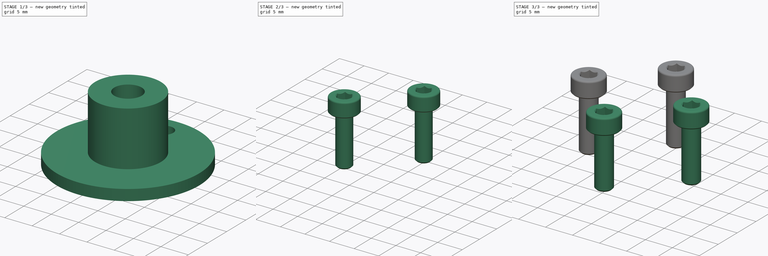
[diagram: build sequence overview — one tinted view per stage of 3, left to right]
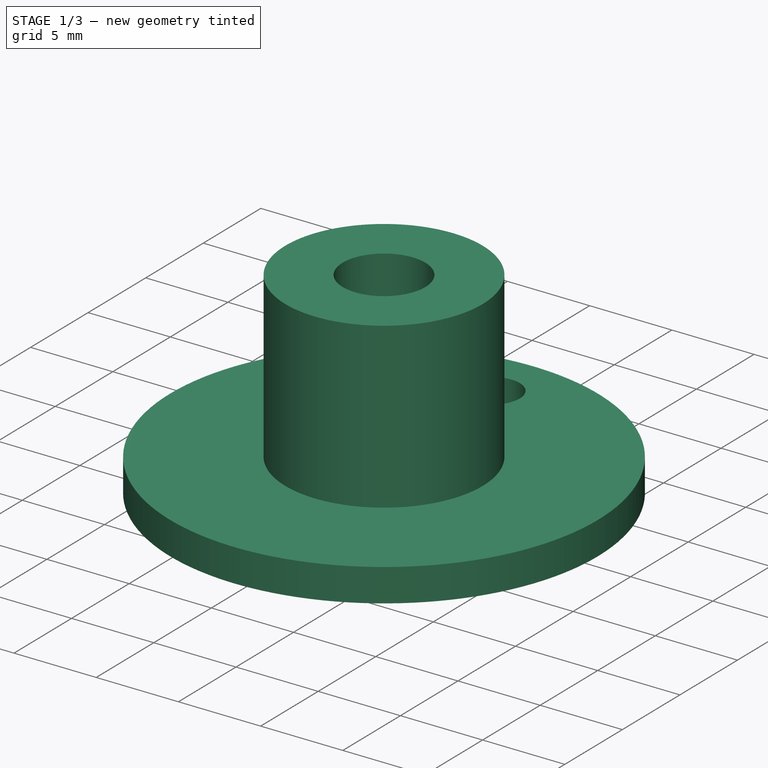
[diagram: stage 1 of 3 — iso view after this stage's code; geometry added in this stage tinted green]
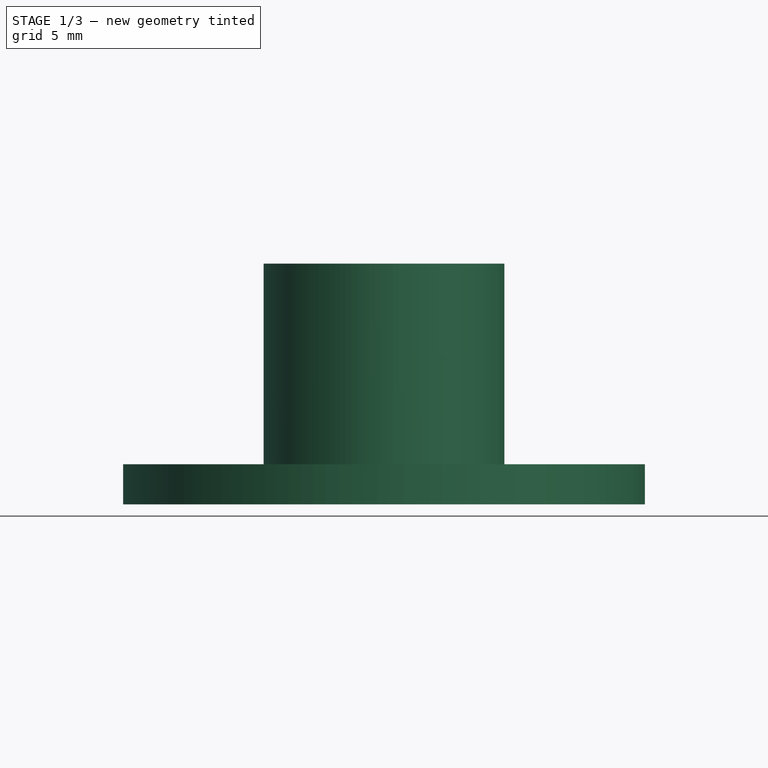
[diagram: stage 1 of 3 — front view after this stage's code; geometry added in this stage tinted green]
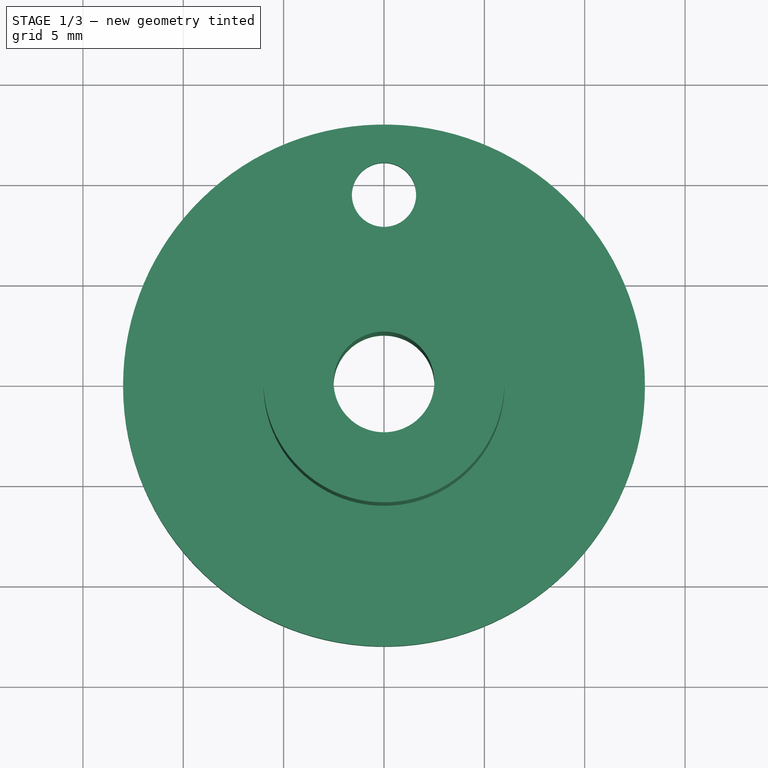
[diagram: stage 1 of 3 — top view after this stage's code; geometry added in this stage tinted green]
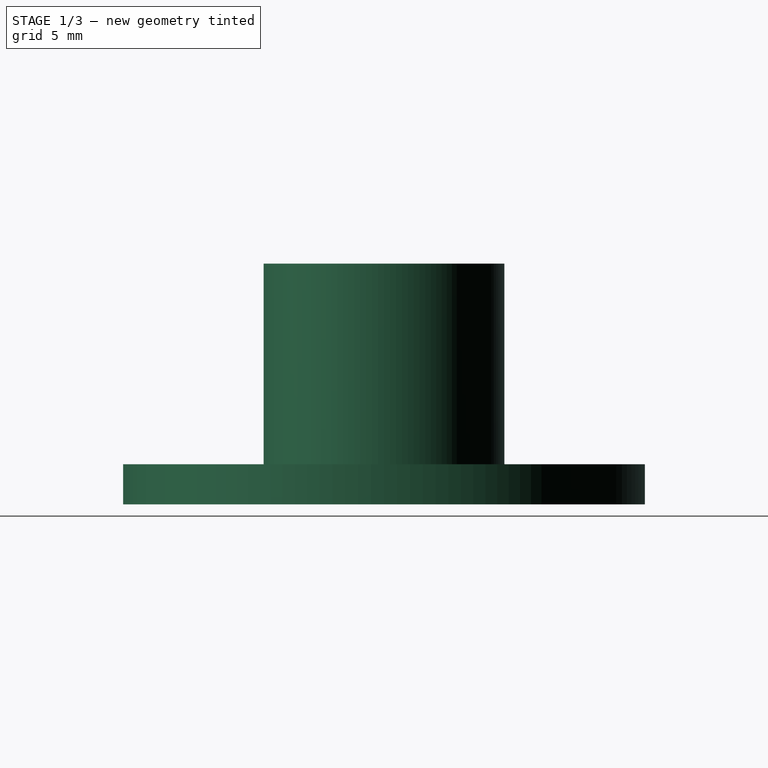
[diagram: stage 1 of 3 — right view after this stage's code; geometry added in this stage tinted green]
FCSTD DOCUMENT  (FreeCAD 0.20R29177 +426 (Git))
Label: FlangeHub5mm
License: All rights reserved
LicenseURL: http://en.wikipedia.org/wiki/All_rights_reserved
objects: Part::FeaturePython×4, App::DocumentObjectGroup×3, Sketcher::SketchObject×2, PartDesign::Revolution×1, PartDesign::Pocket×1, PartDesign::PolarPattern×1, PartDesign::Body×1, PartDesign::CoordinateSystem×1, App::FeaturePython×1, App::Part×1
note: 13 computed .brp shape members not serialized (recipe doc carries the construction recipe); baked Part::Feature solids carry a one-line shape summary decoded from their .brp

FEATURE [Sketcher::SketchObject] Sketch
  FullyConstrained = true
  MapMode = 5
  Placement = pos=(0,0,0) rot=(1,0,0;1.5708rad)
  Support = -> [XZ_Plane]
  sketch-geometry (6):
    g0: LineSegment StartX=2.51 StartY=12 StartZ=0 EndX=2.51 EndY=0 EndZ=0
    g1: LineSegment StartX=2.51 StartY=0 StartZ=0 EndX=13 EndY=0 EndZ=0
    g2: LineSegment StartX=13 StartY=0 StartZ=0 EndX=13 EndY=2 EndZ=0
    g3: LineSegment StartX=13 StartY=2 StartZ=0 EndX=6 EndY=2 EndZ=0
    g4: LineSegment StartX=6 StartY=2 StartZ=0 EndX=6 EndY=12 EndZ=0
    g5: LineSegment StartX=6 StartY=12 StartZ=0 EndX=2.51 EndY=12 EndZ=0
  constraints (18):
    c: Vertical(g0)
    c: Coincident(g1,g0)
    c: PointOnObject(g1,g-1)
    c: Horizontal(g1)
    c: Coincident(g2,g1)
    c: Coincident(g3,g2)
    c: Horizontal(g3)
    c: Coincident(g4,g3)
    c: Vertical(g4)
    c: Coincident(g5,g4)
    c: Coincident(g5,g0)
    c: Horizontal(g5)
    c: Vertical(g2)
    c: DistanceY(g2,g2) = 2
    c: DistanceX(g-1,g1) = 13
    c: DistanceX(g-1,g0) = 2.51
    c: DistanceY(g4,g4) = 10
    c: DistanceX(g-1,g4) = 6
FEATURE [PartDesign::Revolution] Revolution
  Angle = 360
  Axis = (0,-2e-16,1)
  Base = (0,0,0)
  Placement = pos=(0,0,0) rot=(1,0,0;1.5708rad)
  Profile = -> Sketch
  ReferenceAxis = -> Sketch [V_Axis]
  Reversed = true
FEATURE [Sketcher::SketchObject] Sketch001
  FullyConstrained = true
  MapMode = 5
  Support = -> [XY_Plane]
  sketch-geometry (1):
    g0: Circle CenterX=0 CenterY=9.5 CenterZ=0 NormalX=0 NormalY=0 NormalZ=1 AngleXU=0 Radius=1.6
  constraints (3):
    c: PointOnObject(g0,g-2)
    c: Diameter(g0) = 3.2
    c: DistanceY(g-1,g0) = 9.5
FEATURE [PartDesign::Pocket] Pocket  label="MountHole"
  BaseFeature = -> Revolution
  Direction = (0,0,-1)
  Length = 5
  Length2 = 5
  Placement = pos=(0,0,0) rot=(1,0,0;1.5708rad)
  Profile = -> Sketch001
  ReferenceAxis = -> Sketch001 [N_Axis]
  Reversed = true
  Type = 1
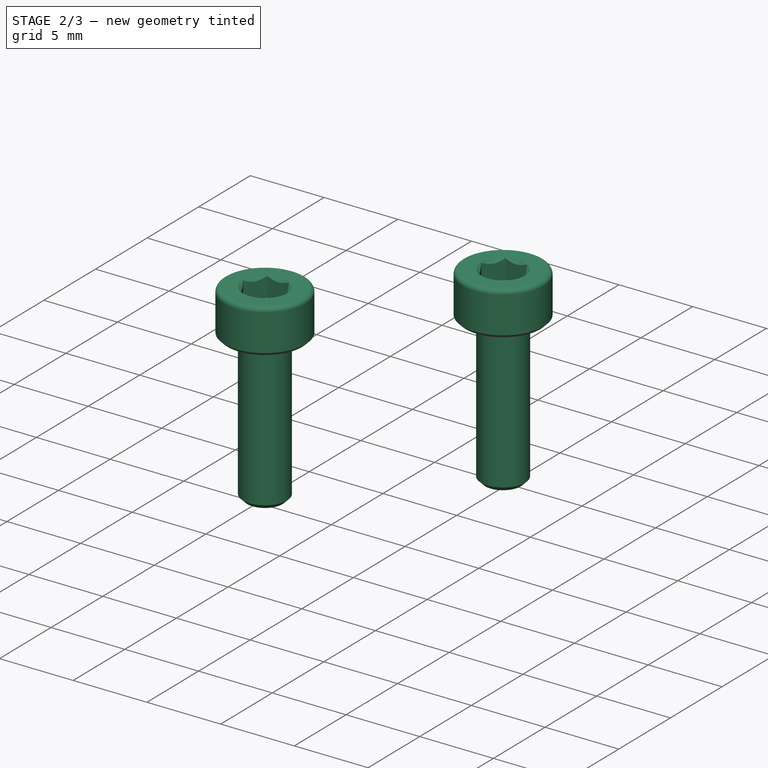
[diagram: stage 2 of 3 — iso view after this stage's code; geometry added in this stage tinted green]
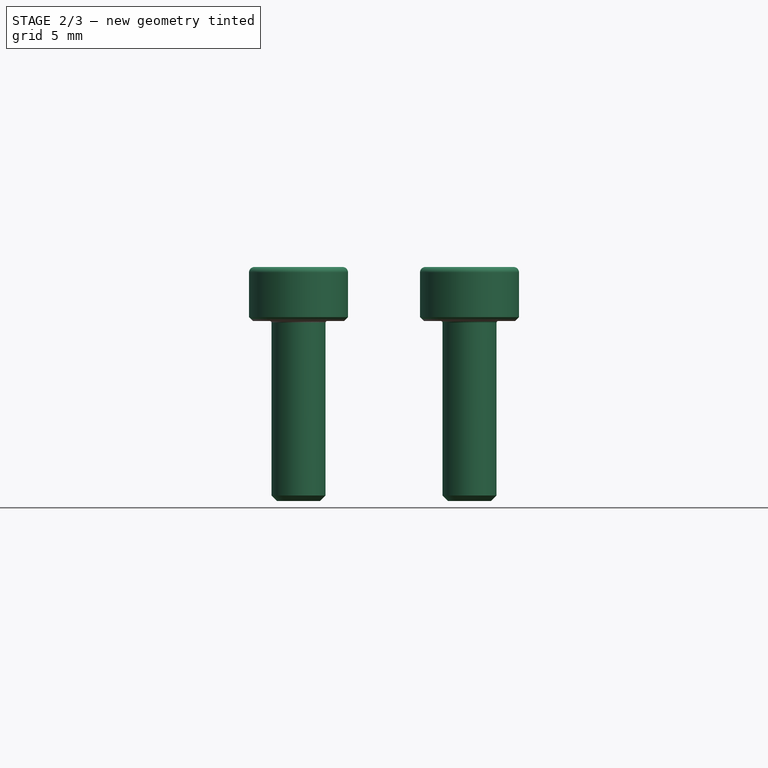
[diagram: stage 2 of 3 — front view after this stage's code; geometry added in this stage tinted green]
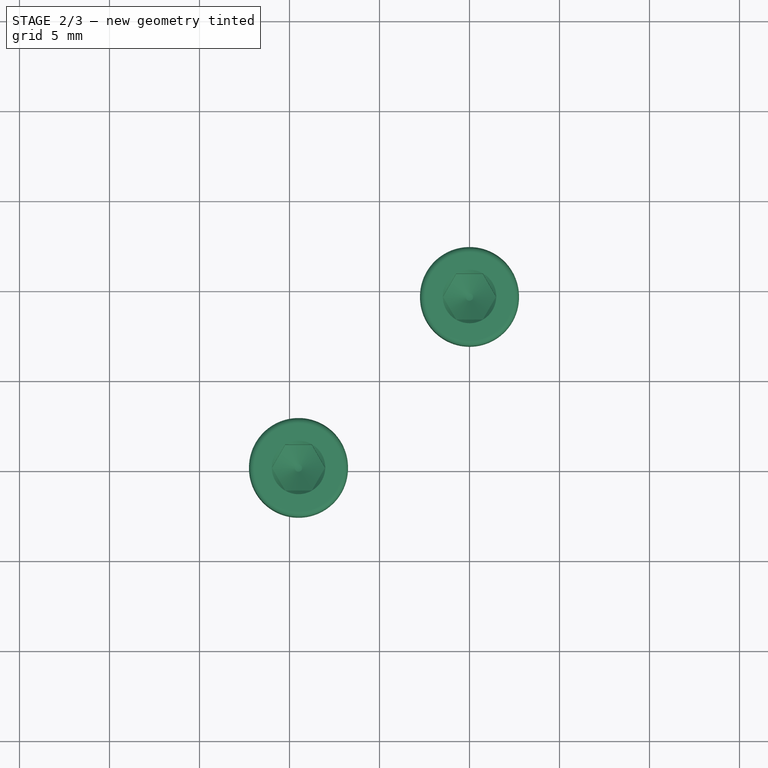
[diagram: stage 2 of 3 — top view after this stage's code; geometry added in this stage tinted green]
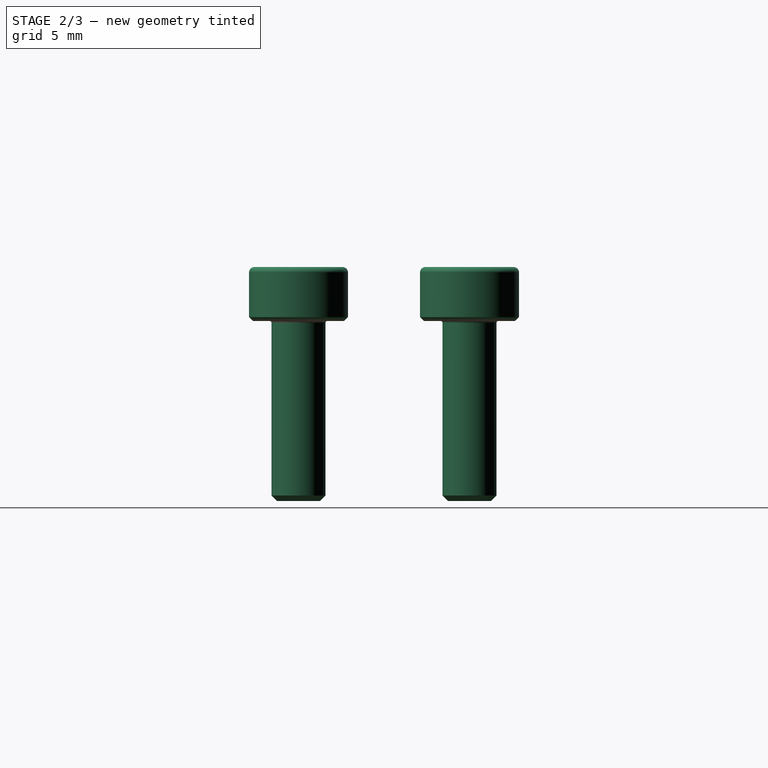
[diagram: stage 2 of 3 — right view after this stage's code; geometry added in this stage tinted green]
FEATURE [PartDesign::PolarPattern] PolarPattern
  Angle = 360
  Axis = -> Sketch001 [N_Axis]
  BaseFeature = -> Pocket
  Occurrences = 4
  Originals = -> [Pocket]
  Placement = pos=(0,0,0) rot=(1,0,0;1.5708rad)
FEATURE [Part::FeaturePython] Screw002  label="M3x10-Screw002"  # Fasteners workbench fastener (typed FeaturePython)
  Placement = pos=(-9.5,1.9e-15,2) rot=(0,0,1;0rad)
  baseObject = -> PolarPattern [Edge17]
  diameter = 4
  invert = true
  leftHanded = false
  length = 3
  lengthCustom = 10
  matchOuter = true
  offset = 0
  thread = false
  type = 34
FEATURE [Part::FeaturePython] Screw003  label="M3x10-Screw003"  # Fasteners workbench fastener (typed FeaturePython)
  Placement = pos=(0,9.5,2) rot=(0,0,1;0rad)
  baseObject = -> PolarPattern [Edge15]
  diameter = 4
  invert = true
  leftHanded = false
  length = 3
  lengthCustom = 10
  matchOuter = true
  offset = 0
  thread = false
  type = 34
FEATURE [App::Part] Assembly
  AssemblyType = Part::Link
  Group = -> [LCS_Origin,Variables,Constraints,Configurations,Body,Screw,Screw001,Screw002,Screw003]
  Origin = -> Origin001
  Type = Assembly
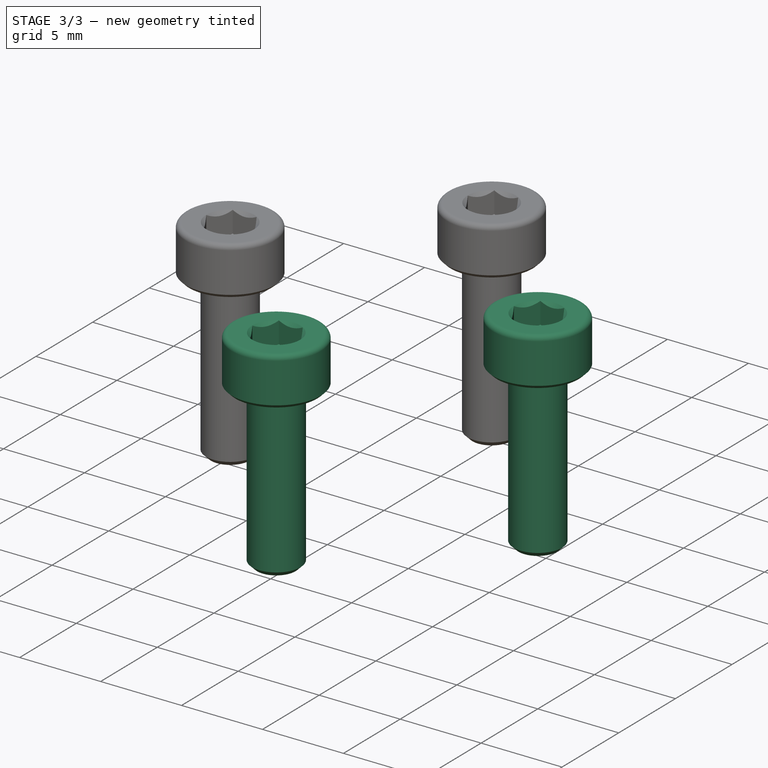
[diagram: stage 3 of 3 — iso view after this stage's code; geometry added in this stage tinted green]
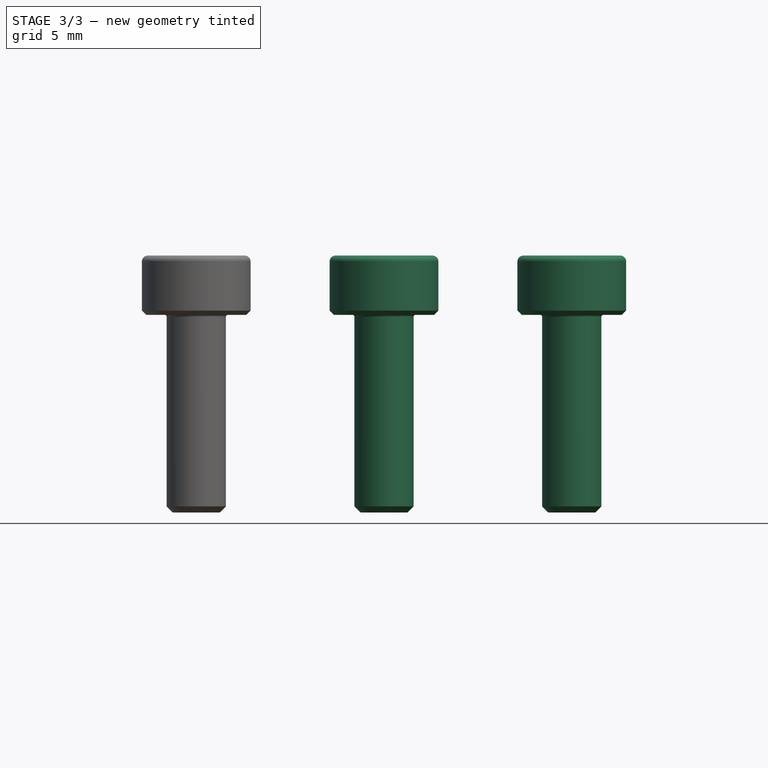
[diagram: stage 3 of 3 — front view after this stage's code; geometry added in this stage tinted green]
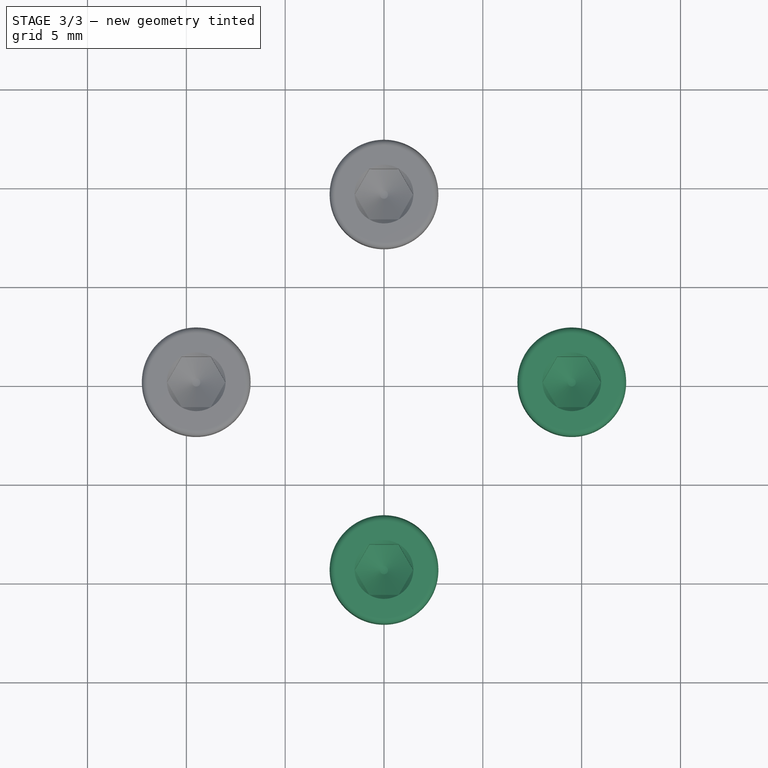
[diagram: stage 3 of 3 — top view after this stage's code; geometry added in this stage tinted green]
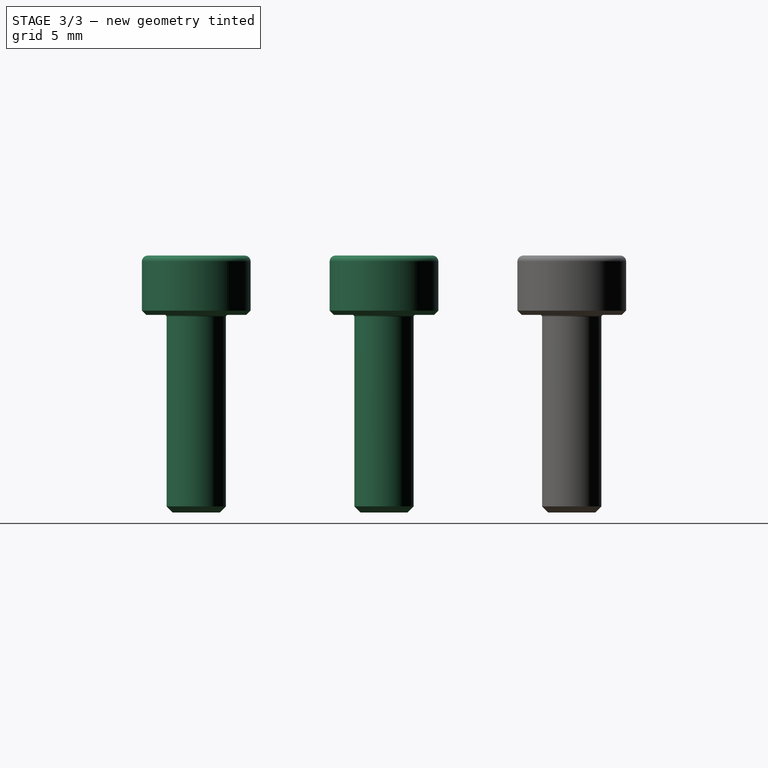
[diagram: stage 3 of 3 — right view after this stage's code; geometry added in this stage tinted green]
FEATURE [PartDesign::Body] Body
  Group = -> [Sketch,Revolution,Sketch001,Pocket,PolarPattern]
  Origin = -> Origin
  Tip = -> PolarPattern
FEATURE [App::DocumentObjectGroup] Parts
FEATURE [PartDesign::CoordinateSystem] LCS_Origin
  AttacherType = Attacher::AttachEngine3D
  MapMode = 2
  Support = -> [X_Axis001]
FEATURE [App::FeaturePython] Variables  # WARN: FeaturePython — macro-defined, semantics opaque (R4)
  Type = App::PropertyContainer
FEATURE [App::DocumentObjectGroup] Constraints
FEATURE [App::DocumentObjectGroup] Configurations
FEATURE [Part::FeaturePython] Screw  label="M3x10-Screw"  # Fasteners workbench fastener (typed FeaturePython)
  Placement = pos=(9.5,-2.1e-15,2) rot=(0,0,1;0rad)
  baseObject = -> Body [Edge19]
  diameter = 4
  invert = true
  leftHanded = false
  length = 3
  lengthCustom = 10
  matchOuter = true
  offset = 0
  thread = false
  type = 34
FEATURE [Part::FeaturePython] Screw001  label="M3x10-Screw001"  # Fasteners workbench fastener (typed FeaturePython)
  Placement = pos=(-1.2e-15,-9.5,2) rot=(0,0,1;0rad)
  baseObject = -> PolarPattern [Edge21]
  diameter = 4
  invert = true
  leftHanded = false
  length = 3
  lengthCustom = 10
  matchOuter = true
  offset = 0
  thread = false
  type = 34
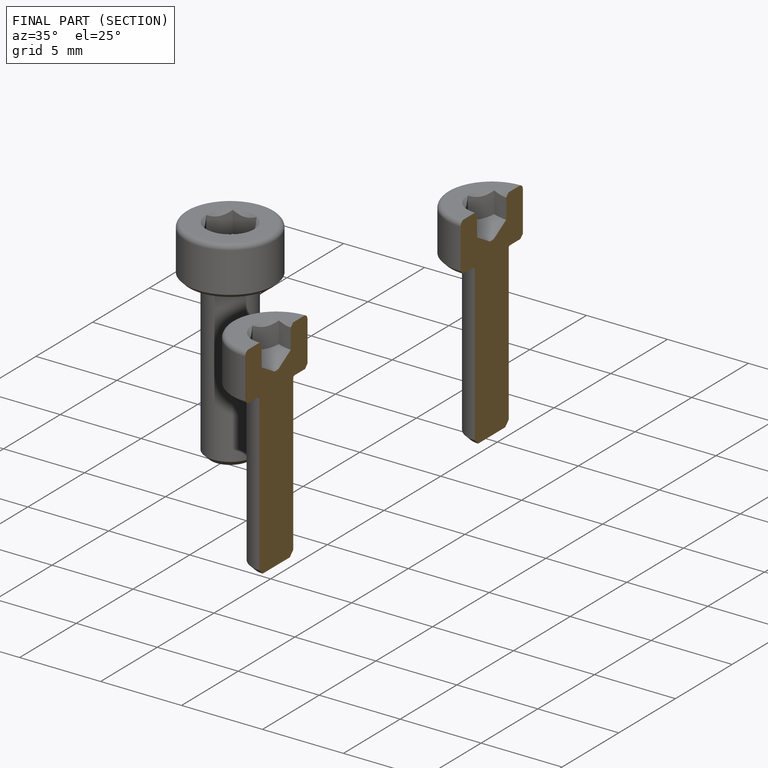
[diagram: finished part — half-section view (interior)]
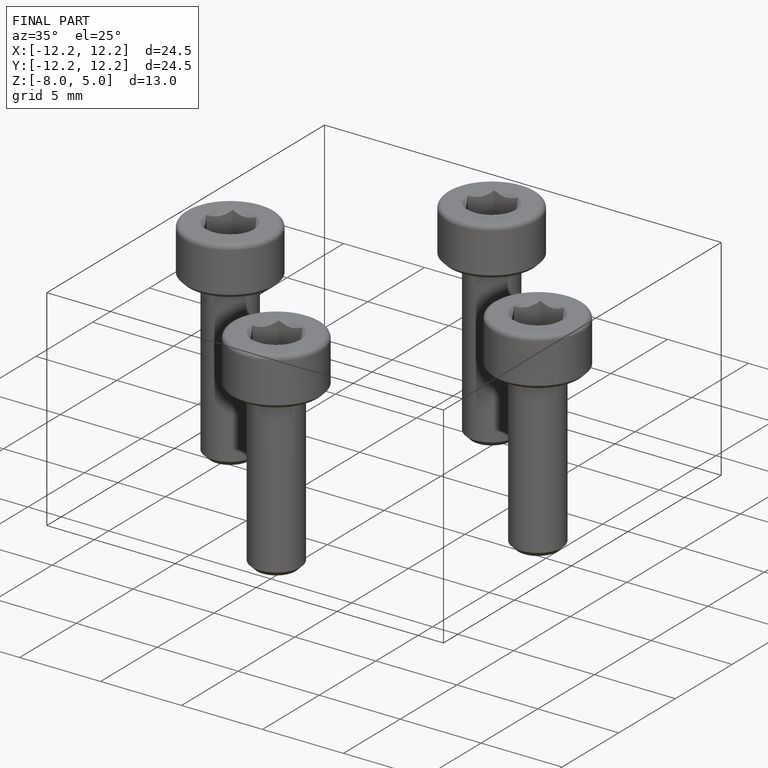
[diagram: finished part — iso view with bounding-box wireframe]
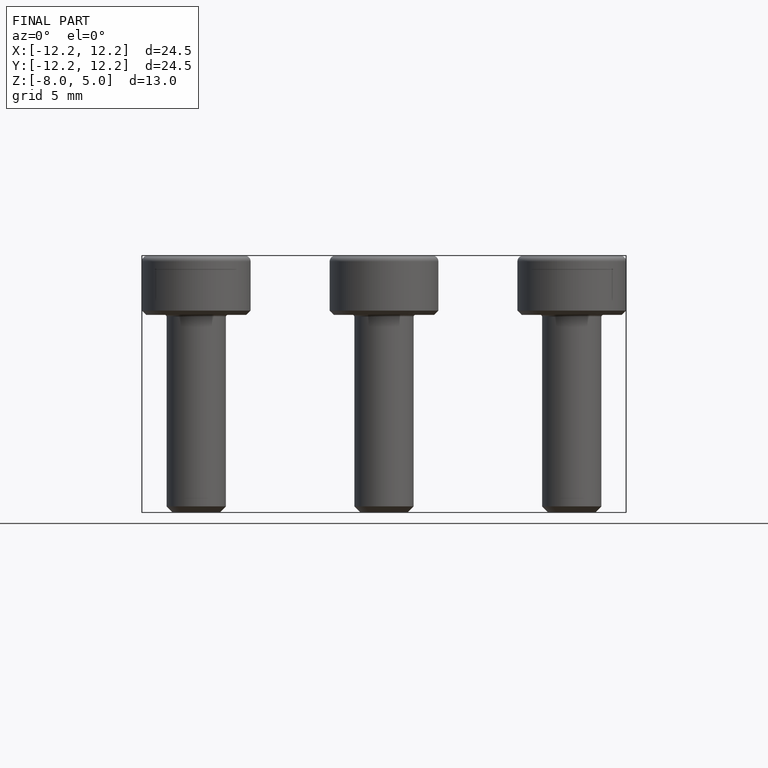
[diagram: finished part — front view with bounding-box wireframe]
